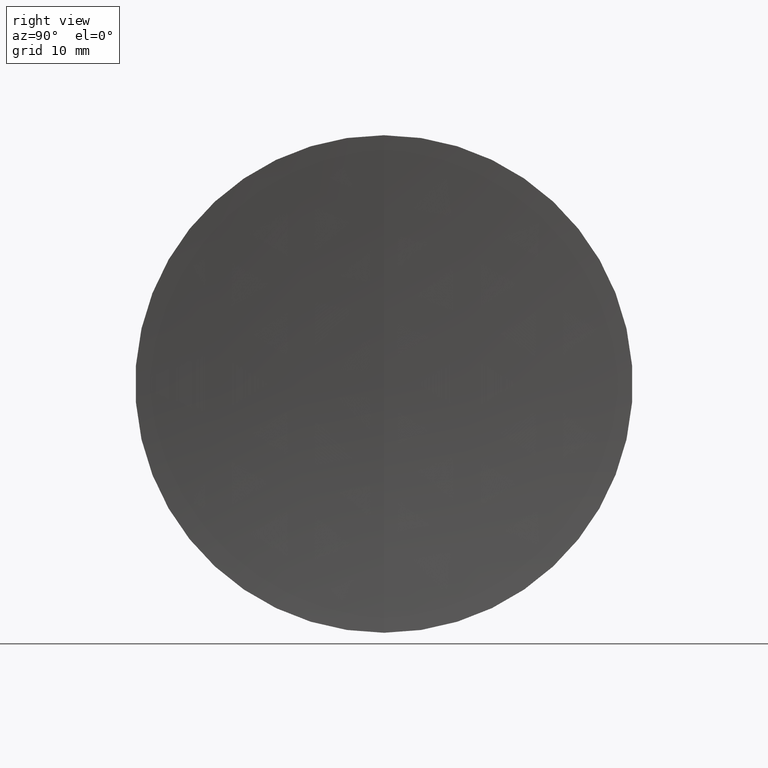
[diagram: clean part render]
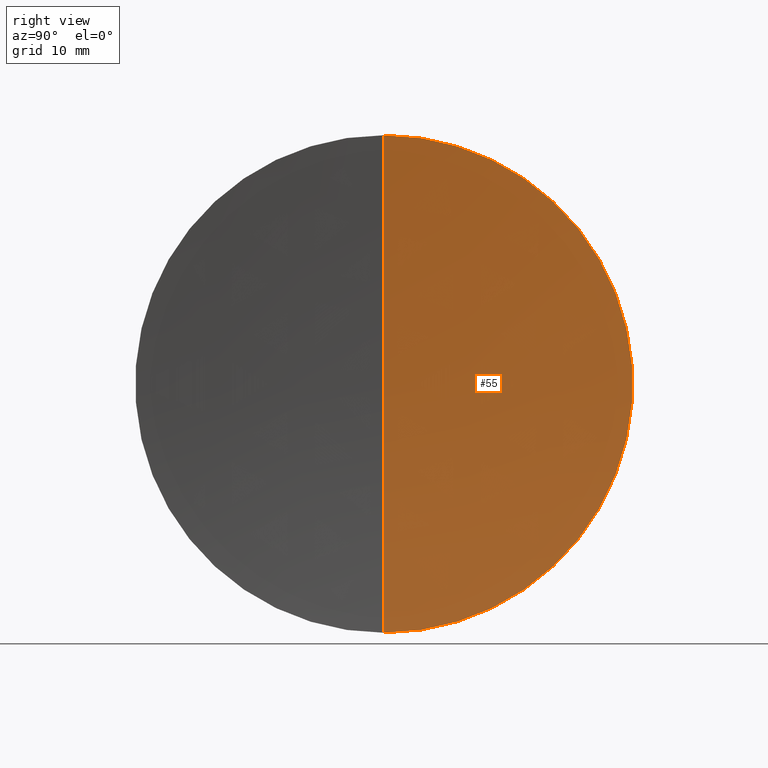
[diagram: same view with one face highlighted and labeled with its STEP entity id]
A machine part, right view. The second image highlights one B-rep face of the part: STEP entity #55.
In plain terms, the highlighted spherical surface has radius 259.4 mm.
Its self-contained STEP definition (entity closure, byte-faithful):
#27 = FACE_OUTER_BOUND ( 'NONE', #102, .T. ) ;
#31 = CARTESIAN_POINT ( 'NONE',  ( 113.4003446329779900, 0.0000000000000000000, -1.588366898494116900E-014 ) ) ;
#41 = DIRECTION ( 'NONE',  ( 0.0000000000000000000, 0.0000000000000000000, -1.000000000000000000 ) ) ;
#44 = CARTESIAN_POINT ( 'NONE',  ( 372.8003446329779500, 0.0000000000000000000, 0.0000000000000000000 ) ) ;
#49 = VERTEX_POINT ( 'NONE', #289 ) ;
#53 = DIRECTION ( 'NONE',  ( 0.0000000000000000000, 0.0000000000000000000, 1.000000000000000000 ) ) ;
#55 = ADVANCED_FACE ( 'NONE', ( #27 ), #321, .F. ) ;
#66 = DIRECTION ( 'NONE',  ( 0.0000000000000000000, 1.224646799147353200E-016, -1.000000000000000000 ) ) ;
#68 = CARTESIAN_POINT ( 'NONE',  ( 372.8003446329779500, 0.0000000000000000000, 0.0000000000000000000 ) ) ;
#90 = DIRECTION ( 'NONE',  ( 0.0000000000000000000, 0.0000000000000000000, 1.000000000000000000 ) ) ;
#102 = EDGE_LOOP ( 'NONE', ( #121, #308, #220 ) ) ;
#108 = AXIS2_PLACEMENT_3D ( 'NONE', #311, #196, #90 ) ;
#121 = ORIENTED_EDGE ( 'NONE', *, *, #263, .F. ) ;
#126 = AXIS2_PLACEMENT_3D ( 'NONE', #129, #260, #53 ) ;
#129 = CARTESIAN_POINT ( 'NONE',  ( 114.6469018901007200, 0.0000000000000000000, 0.0000000000000000000 ) ) ;
#143 = CIRCLE ( 'NONE', #188, 259.3999999999999800 ) ;
#188 = AXIS2_PLACEMENT_3D ( 'NONE', #44, #200, #66 ) ;
#196 = DIRECTION ( 'NONE',  ( 0.0000000000000000000, 1.000000000000000000, -0.0000000000000000000 ) ) ;
#200 = DIRECTION ( 'NONE',  ( 0.0000000000000000000, -1.000000000000000000, -1.224646799147353200E-016 ) ) ;
#220 = ORIENTED_EDGE ( 'NONE', *, *, #298, .F. ) ;
#228 = DIRECTION ( 'NONE',  ( -0.0000000000000000000, -1.000000000000000000, -0.0000000000000000000 ) ) ;
#248 = VERTEX_POINT ( 'NONE', #31 ) ;
#260 = DIRECTION ( 'NONE',  ( -1.000000000000000000, -0.0000000000000000000, -0.0000000000000000000 ) ) ;
#263 = EDGE_CURVE ( 'NONE', #49, #330, #300, .T. ) ;
#288 = CIRCLE ( 'NONE', #108, 259.3999999999999800 ) ;
#289 = CARTESIAN_POINT ( 'NONE',  ( 114.6469018901007100, -3.110602869834265800E-015, 25.39999999999991000 ) ) ;
#298 = EDGE_CURVE ( 'NONE', #330, #248, #288, .T. ) ;
#300 = CIRCLE ( 'NONE', #126, 25.39999999999997700 ) ;
#306 = EDGE_CURVE ( 'NONE', #49, #248, #143, .T. ) ;
#308 = ORIENTED_EDGE ( 'NONE', *, *, #306, .T. ) ;
#311 = CARTESIAN_POINT ( 'NONE',  ( 372.8003446329779500, 0.0000000000000000000, 0.0000000000000000000 ) ) ;
#321 = SPHERICAL_SURFACE ( 'NONE', #333, 259.3999999999999800 ) ;
#330 = VERTEX_POINT ( 'NONE', #334 ) ;
#333 = AXIS2_PLACEMENT_3D ( 'NONE', #68, #228, #41 ) ;
#334 = CARTESIAN_POINT ( 'NONE',  ( 114.6469018901007100, 0.0000000000000000000, -25.39999999999991000 ) ) ;